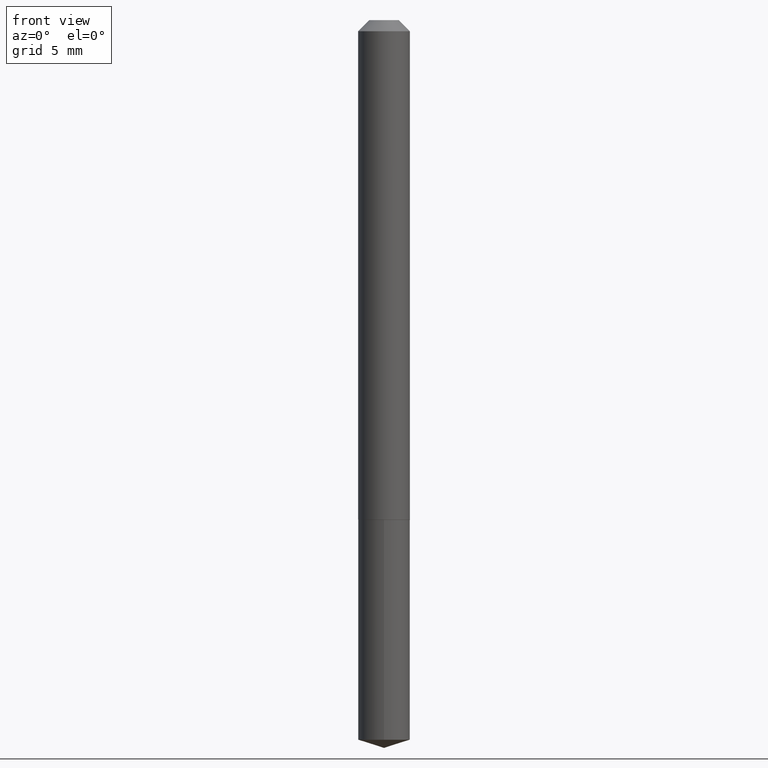
[diagram: clean part render]
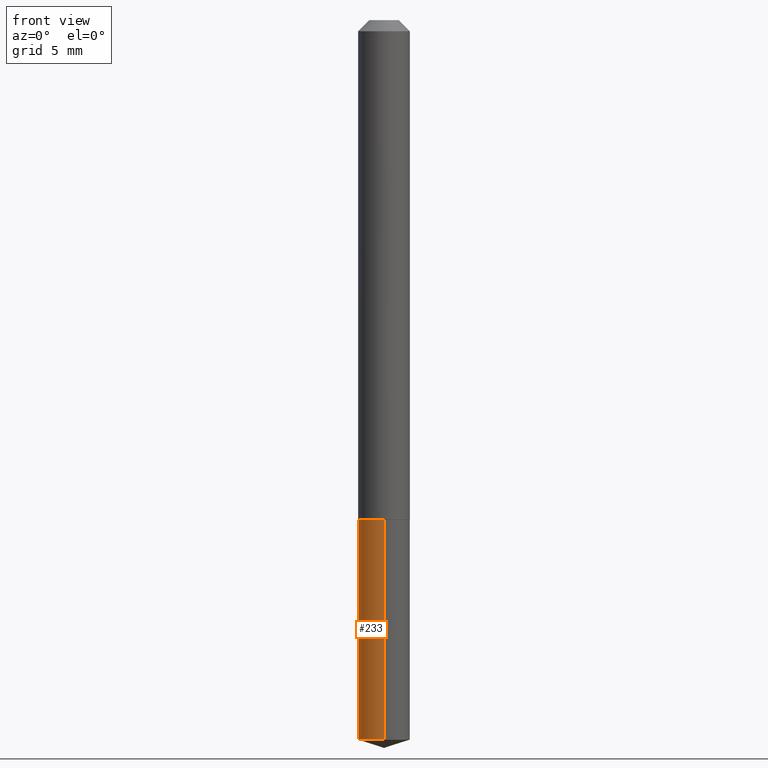
[diagram: same view with one face highlighted and labeled with its STEP entity id]
A machine part, front view. The second image highlights one B-rep face of the part: STEP entity #233.
In plain terms, the highlighted cylindrical surface (edge-blend (fillet) strip) has radius 1.8504 mm, axis along (-0, 0, 1).
Its self-contained STEP definition (entity closure, byte-faithful):
#27 = AXIS2_PLACEMENT_3D ( 'NONE', #203, #253, #374 ) ;
#53 = EDGE_CURVE ( 'NONE', #189, #87, #162, .T. ) ;
#54 = CARTESIAN_POINT ( 'NONE',  ( 5.176303830012824729E-16, 0.07284999999999293430, -2.024230483230166744 ) ) ;
#55 = VECTOR ( 'NONE', #329, 39.37007874015748143 ) ;
#72 = ORIENTED_EDGE ( 'NONE', *, *, #165, .F. ) ;
#80 = EDGE_CURVE ( 'NONE', #189, #157, #390, .T. ) ;
#85 = CARTESIAN_POINT ( 'NONE',  ( 3.437106407093210258E-29, -4.907277021744042169E-15, -1.405500000000000416 ) ) ;
#87 = VERTEX_POINT ( 'NONE', #197 ) ;
#95 = CARTESIAN_POINT ( 'NONE',  ( 4.950199262242735312E-29, -7.067553278479676928E-15, -2.024230483230166300 ) ) ;
#106 = CYLINDRICAL_SURFACE ( 'NONE', #325, 0.07284999999999999809 ) ;
#124 = CARTESIAN_POINT ( 'NONE',  ( 5.176303830012672873E-16, 0.07284999999999508535, -1.405500000000000638 ) ) ;
#145 = DIRECTION ( 'NONE',  ( -2.445479730124527692E-29, 3.491465695140185611E-15, 1.000000000000000000 ) ) ;
#150 = ORIENTED_EDGE ( 'NONE', *, *, #278, .T. ) ;
#155 = DIRECTION ( 'NONE',  ( -2.445479730124527692E-29, 3.491465695140185611E-15, 1.000000000000000000 ) ) ;
#157 = VERTEX_POINT ( 'NONE', #342 ) ;
#162 = CIRCLE ( 'NONE', #369, 0.07284999999999999809 ) ;
#165 = EDGE_CURVE ( 'NONE', #157, #300, #287, .T. ) ;
#179 = EDGE_LOOP ( 'NONE', ( #250, #323, #150, #72 ) ) ;
#184 = DIRECTION ( 'NONE',  ( -6.982962677686265922E-15, -1.000000000000000000, 3.749962928845934523E-15 ) ) ;
#187 = DIRECTION ( 'NONE',  ( -6.982962677686265922E-15, -1.000000000000000000, 3.749962928845934523E-15 ) ) ;
#189 = VERTEX_POINT ( 'NONE', #54 ) ;
#197 = CARTESIAN_POINT ( 'NONE',  ( -5.087088310693949799E-16, -0.07285000000000707576, -2.024230483230165856 ) ) ;
#203 = CARTESIAN_POINT ( 'NONE',  ( 3.437106407093210258E-29, -4.907277021744042169E-15, -1.405500000000000416 ) ) ;
#215 = DIRECTION ( 'NONE',  ( -2.445479730124527972E-29, 3.491465695140185611E-15, 1.000000000000000000 ) ) ;
#226 = LINE ( 'NONE', #340, #55 ) ;
#228 = CARTESIAN_POINT ( 'NONE',  ( -5.087088310694100669E-16, -0.07285000000000491083, -1.405499999999999972 ) ) ;
#233 = ADVANCED_FACE ( 'NONE', ( #292 ), #106, .T. ) ;
#250 = ORIENTED_EDGE ( 'NONE', *, *, #80, .F. ) ;
#253 = DIRECTION ( 'NONE',  ( -2.445479730124527692E-29, 3.491465695140185611E-15, 1.000000000000000000 ) ) ;
#278 = EDGE_CURVE ( 'NONE', #87, #300, #226, .T. ) ;
#287 = CIRCLE ( 'NONE', #27, 0.07284999999999999809 ) ;
#292 = FACE_OUTER_BOUND ( 'NONE', #179, .T. ) ;
#300 = VERTEX_POINT ( 'NONE', #228 ) ;
#323 = ORIENTED_EDGE ( 'NONE', *, *, #53, .T. ) ;
#325 = AXIS2_PLACEMENT_3D ( 'NONE', #85, #145, #184 ) ;
#329 = DIRECTION ( 'NONE',  ( -2.445479730124527972E-29, 3.491465695140185611E-15, 1.000000000000000000 ) ) ;
#338 = VECTOR ( 'NONE', #215, 39.37007874015748143 ) ;
#340 = CARTESIAN_POINT ( 'NONE',  ( -5.087088310694100669E-16, -0.07285000000000491083, -1.405499999999999972 ) ) ;
#342 = CARTESIAN_POINT ( 'NONE',  ( 5.176303830012825715E-16, 0.07284999999999508535, -1.405500000000000638 ) ) ;
#369 = AXIS2_PLACEMENT_3D ( 'NONE', #95, #155, #187 ) ;
#374 = DIRECTION ( 'NONE',  ( -6.982962677686265922E-15, -1.000000000000000000, 3.749962928845934523E-15 ) ) ;
#390 = LINE ( 'NONE', #124, #338 ) ;